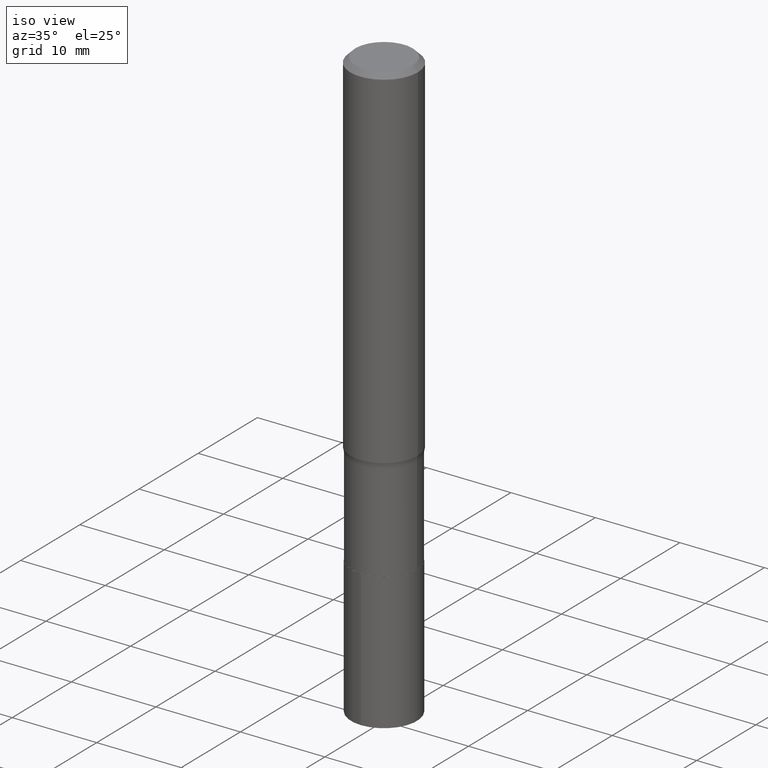
[diagram: clean part render]
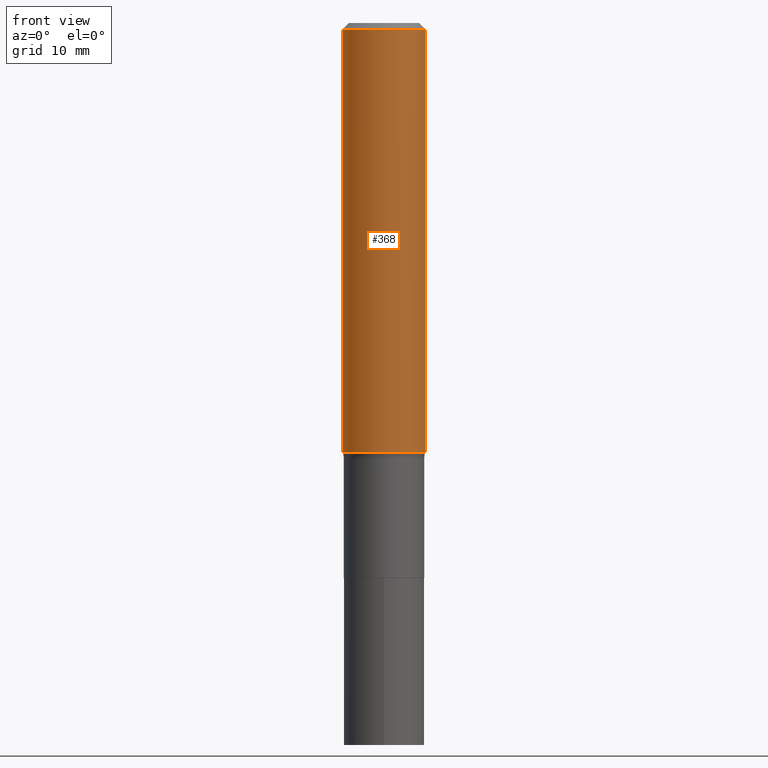
[diagram: tour spotlight — one face highlighted and labeled with its STEP entity id]
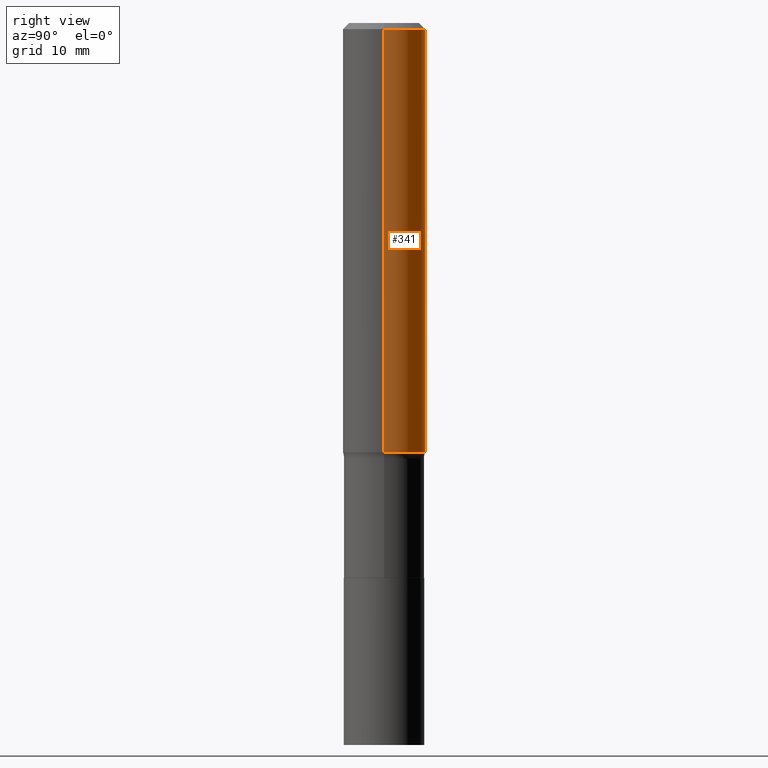
[diagram: tour spotlight — one face highlighted and labeled with its STEP entity id]
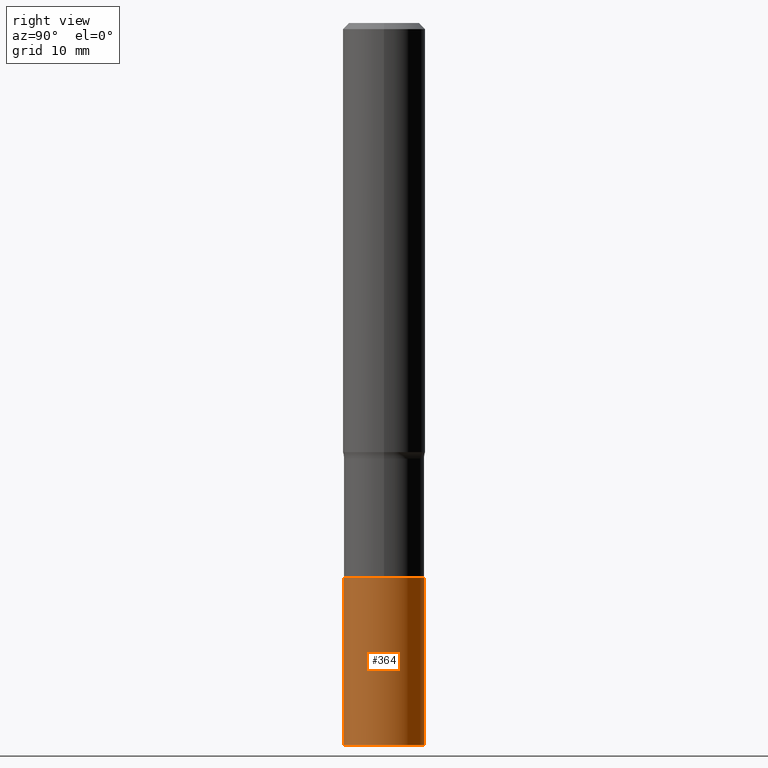
[diagram: tour spotlight — one face highlighted and labeled with its STEP entity id]
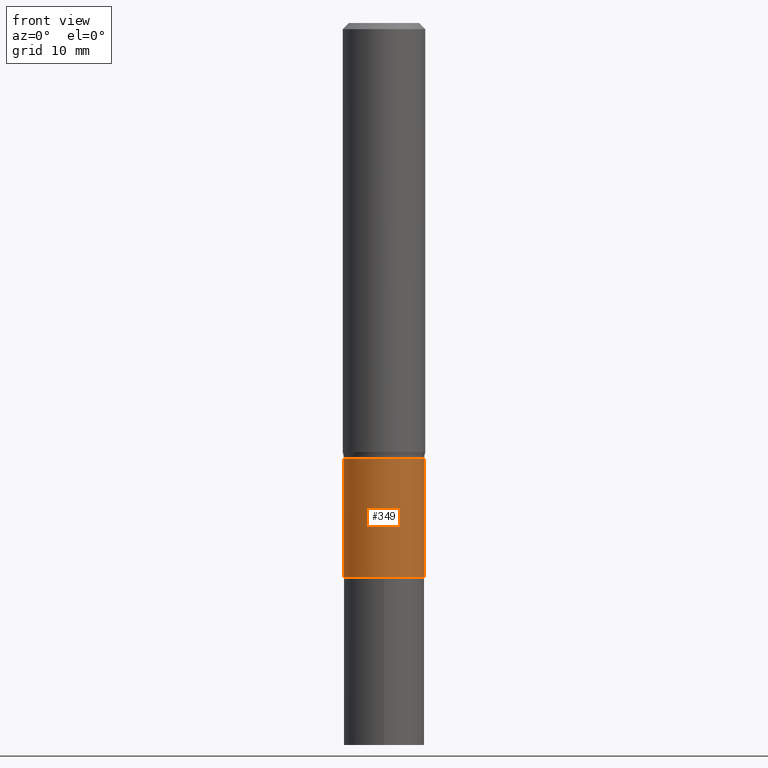
[diagram: tour spotlight — one face highlighted and labeled with its STEP entity id]
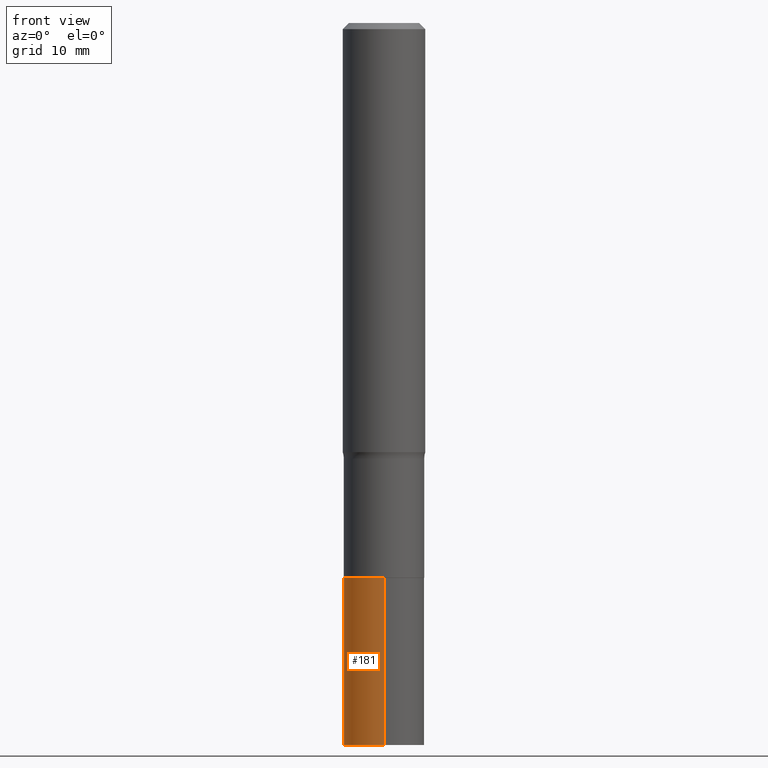
[diagram: tour spotlight — one face highlighted and labeled with its STEP entity id]
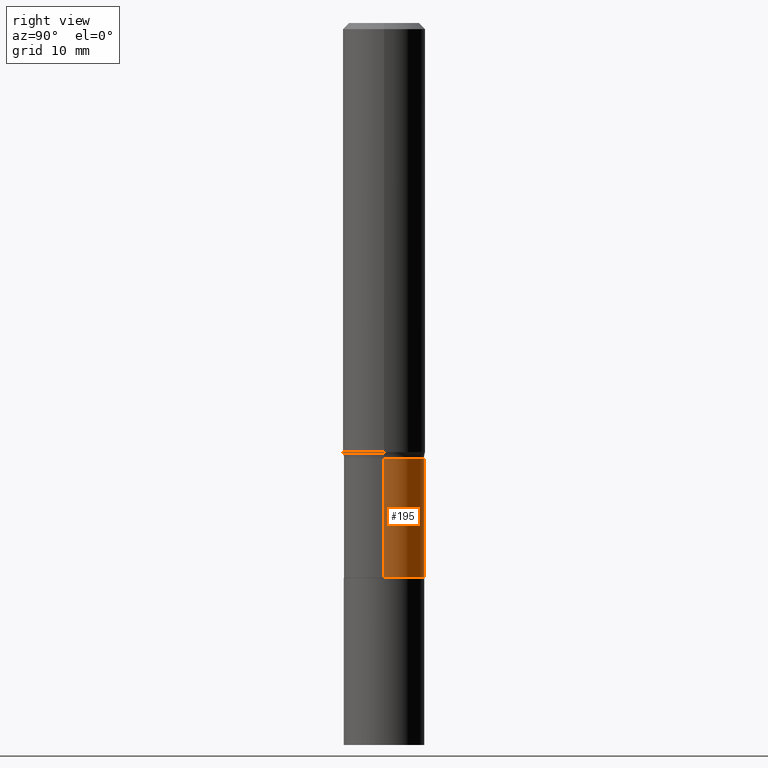
[diagram: tour spotlight — one face highlighted and labeled with its STEP entity id]
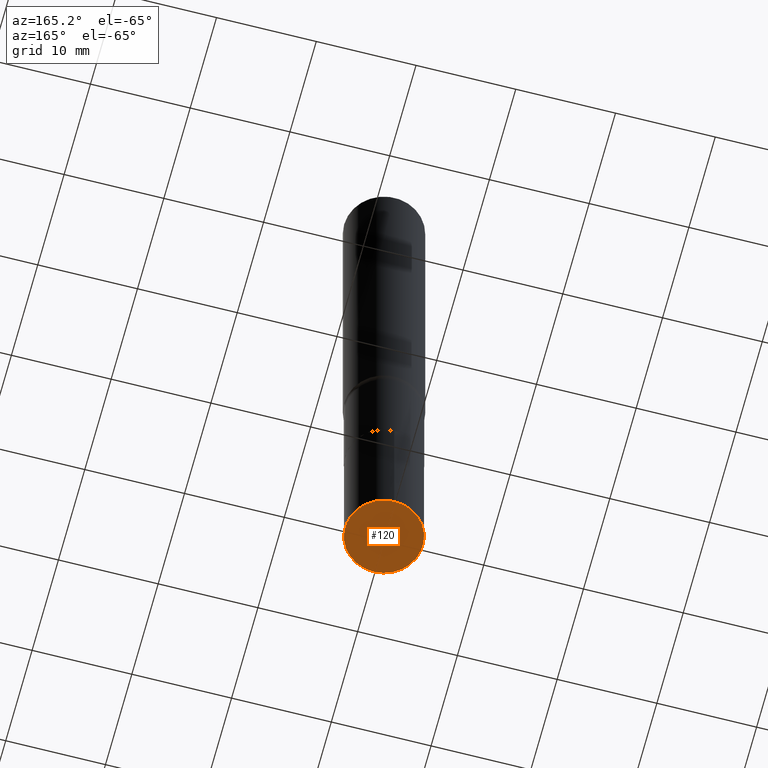
[diagram: tour spotlight — one face highlighted and labeled with its STEP entity id]
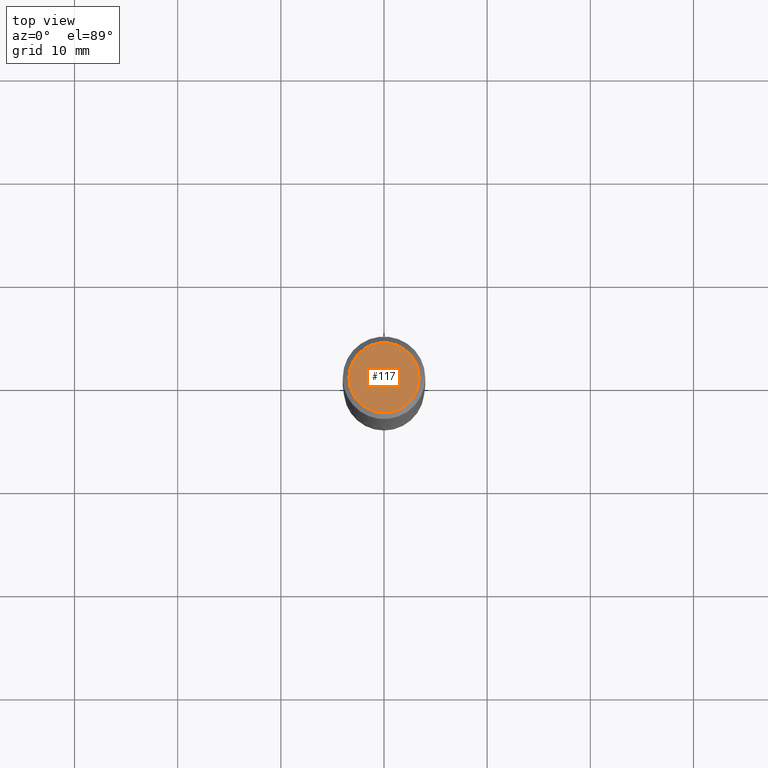
[diagram: tour spotlight — one face highlighted and labeled with its STEP entity id]
A machine part: a face-by-face anatomy tour. The part has 16 B-rep faces; the first image is the clean iso view, then the 8 largest visible faces are spotlighted one at a time (largest first), each with its STEP entity span.

Face 1 — front view, entity #368. In plain terms, the highlighted cylindrical surface (partial cylindrical patch) has radius 4.0005 mm, axis along (-0, 0, 1).
Definition (entity closure, byte-faithful):
#2 = DIRECTION ( 'NONE',  ( 1.000000000000000000, -6.982962677686265922E-15, 0.000000000000000000 ) ) ;
#15 = EDGE_CURVE ( 'NONE', #165, #241, #380, .T. ) ;
#20 = CARTESIAN_POINT ( 'NONE',  ( 0.1575000000000000011, -1.182302868365756679E-15, -0.02362500000000014588 ) ) ;
#28 = EDGE_CURVE ( 'NONE', #52, #271, #307, .T. ) ;
#35 = FACE_OUTER_BOUND ( 'NONE', #88, .T. ) ;
#39 = CARTESIAN_POINT ( 'NONE',  ( 5.777420054612421104E-31, -8.248624663016984002E-17, -0.02362500000000014588 ) ) ;
#40 = EDGE_CURVE ( 'NONE', #52, #165, #108, .T. ) ;
#52 = VERTEX_POINT ( 'NONE', #67 ) ;
#67 = CARTESIAN_POINT ( 'NONE',  ( -0.1575000000000001676, -4.599846118689354837E-15, -1.637972646133749377 ) ) ;
#69 = CARTESIAN_POINT ( 'NONE',  ( -0.1575000000000000844, 1.119104808822158392E-15, -7.747322767151481189E-30 ) ) ;
#76 = VECTOR ( 'NONE', #460, 39.37007874015748143 ) ;
#88 = EDGE_LOOP ( 'NONE', ( #135, #170, #386, #197 ) ) ;
#106 = DIRECTION ( 'NONE',  ( -2.445468806185136597E-29, 3.491481338843145583E-15, 1.000000000000000000 ) ) ;
#107 = CYLINDRICAL_SURFACE ( 'NONE', #204, 0.1575000000000000844 ) ;
#108 = LINE ( 'NONE', #69, #229 ) ;
#121 = CARTESIAN_POINT ( 'NONE',  ( -0.1575000000000000011, -1.781613778248682921E-15, -0.02362500000000014588 ) ) ;
#133 = CARTESIAN_POINT ( 'NONE',  ( 0.1575000000000001676, -6.818767549247101499E-15, -1.637972646133749377 ) ) ;
#135 = ORIENTED_EDGE ( 'NONE', *, *, #40, .F. ) ;
#165 = VERTEX_POINT ( 'NONE', #121 ) ;
#170 = ORIENTED_EDGE ( 'NONE', *, *, #28, .T. ) ;
#171 = AXIS2_PLACEMENT_3D ( 'NONE', #247, #214, #2 ) ;
#197 = ORIENTED_EDGE ( 'NONE', *, *, #15, .F. ) ;
#204 = AXIS2_PLACEMENT_3D ( 'NONE', #400, #284, #205 ) ;
#205 = DIRECTION ( 'NONE',  ( 1.000000000000000000, -6.982962677686267499E-15, 4.876176775795936353E-29 ) ) ;
#214 = DIRECTION ( 'NONE',  ( -2.445468806185136597E-29, 3.491481338843145583E-15, 1.000000000000000000 ) ) ;
#221 = AXIS2_PLACEMENT_3D ( 'NONE', #39, #106, #466 ) ;
#229 = VECTOR ( 'NONE', #257, 39.37007874015748143 ) ;
#241 = VERTEX_POINT ( 'NONE', #20 ) ;
#247 = CARTESIAN_POINT ( 'NONE',  ( 4.005611011504608919E-29, -5.718950927511513230E-15, -1.637972646133749377 ) ) ;
#257 = DIRECTION ( 'NONE',  ( -2.445468806185136877E-29, 3.491481338843145188E-15, 1.000000000000000000 ) ) ;
#271 = VERTEX_POINT ( 'NONE', #133 ) ;
#284 = DIRECTION ( 'NONE',  ( -2.445468806185136597E-29, 3.491481338843145583E-15, 1.000000000000000000 ) ) ;
#307 = CIRCLE ( 'NONE', #171, 0.1575000000000001954 ) ;
#331 = EDGE_CURVE ( 'NONE', #271, #241, #448, .T. ) ;
#368 = ADVANCED_FACE ( 'NONE', ( #35 ), #107, .T. ) ;
#380 = CIRCLE ( 'NONE', #221, 0.1575000000000000011 ) ;
#386 = ORIENTED_EDGE ( 'NONE', *, *, #331, .T. ) ;
#400 = CARTESIAN_POINT ( 'NONE',  ( 0.000000000000000000, 0.000000000000000000, 0.000000000000000000 ) ) ;
#448 = LINE ( 'NONE', #456, #76 ) ;
#456 = CARTESIAN_POINT ( 'NONE',  ( 0.1575000000000000844, -1.099816621735587677E-15, 7.679978421878603638E-30 ) ) ;
#460 = DIRECTION ( 'NONE',  ( -2.445468806185136877E-29, 3.491481338843145188E-15, 1.000000000000000000 ) ) ;
#466 = DIRECTION ( 'NONE',  ( 1.000000000000000000, -6.982962677686265922E-15, 0.000000000000000000 ) ) ;

Face 2 — right view, entity #341. In plain terms, the highlighted cylindrical surface (partial cylindrical patch) has radius 4.0005 mm, axis along (-0, 0, 1).
Definition (entity closure, byte-faithful):
#17 = CIRCLE ( 'NONE', #281, 0.1575000000000000011 ) ;
#20 = CARTESIAN_POINT ( 'NONE',  ( 0.1575000000000000011, -1.182302868365756679E-15, -0.02362500000000014588 ) ) ;
#29 = DIRECTION ( 'NONE',  ( -2.445468806185136597E-29, 3.491481338843145583E-15, 1.000000000000000000 ) ) ;
#40 = EDGE_CURVE ( 'NONE', #52, #165, #108, .T. ) ;
#41 = FACE_OUTER_BOUND ( 'NONE', #420, .T. ) ;
#50 = DIRECTION ( 'NONE',  ( 1.000000000000000000, -6.982962677686265922E-15, 0.000000000000000000 ) ) ;
#52 = VERTEX_POINT ( 'NONE', #67 ) ;
#58 = CARTESIAN_POINT ( 'NONE',  ( 0.000000000000000000, 0.000000000000000000, 0.000000000000000000 ) ) ;
#67 = CARTESIAN_POINT ( 'NONE',  ( -0.1575000000000001676, -4.599846118689354837E-15, -1.637972646133749377 ) ) ;
#69 = CARTESIAN_POINT ( 'NONE',  ( -0.1575000000000000844, 1.119104808822158392E-15, -7.747322767151481189E-30 ) ) ;
#76 = VECTOR ( 'NONE', #460, 39.37007874015748143 ) ;
#104 = ORIENTED_EDGE ( 'NONE', *, *, #329, .F. ) ;
#108 = LINE ( 'NONE', #69, #229 ) ;
#121 = CARTESIAN_POINT ( 'NONE',  ( -0.1575000000000000011, -1.781613778248682921E-15, -0.02362500000000014588 ) ) ;
#133 = CARTESIAN_POINT ( 'NONE',  ( 0.1575000000000001676, -6.818767549247101499E-15, -1.637972646133749377 ) ) ;
#156 = CIRCLE ( 'NONE', #390, 0.1575000000000001954 ) ;
#165 = VERTEX_POINT ( 'NONE', #121 ) ;
#189 = CARTESIAN_POINT ( 'NONE',  ( 5.777420054612421104E-31, -8.248624663016984002E-17, -0.02362500000000014588 ) ) ;
#206 = ORIENTED_EDGE ( 'NONE', *, *, #312, .T. ) ;
#229 = VECTOR ( 'NONE', #257, 39.37007874015748143 ) ;
#241 = VERTEX_POINT ( 'NONE', #20 ) ;
#243 = ORIENTED_EDGE ( 'NONE', *, *, #40, .T. ) ;
#257 = DIRECTION ( 'NONE',  ( -2.445468806185136877E-29, 3.491481338843145188E-15, 1.000000000000000000 ) ) ;
#271 = VERTEX_POINT ( 'NONE', #133 ) ;
#275 = CARTESIAN_POINT ( 'NONE',  ( 4.005611011504608919E-29, -5.718950927511513230E-15, -1.637972646133749377 ) ) ;
#281 = AXIS2_PLACEMENT_3D ( 'NONE', #189, #29, #310 ) ;
#310 = DIRECTION ( 'NONE',  ( 1.000000000000000000, -6.982962677686265922E-15, 0.000000000000000000 ) ) ;
#312 = EDGE_CURVE ( 'NONE', #271, #52, #156, .T. ) ;
#329 = EDGE_CURVE ( 'NONE', #241, #165, #17, .T. ) ;
#331 = EDGE_CURVE ( 'NONE', #271, #241, #448, .T. ) ;
#341 = ADVANCED_FACE ( 'NONE', ( #41 ), #388, .T. ) ;
#356 = DIRECTION ( 'NONE',  ( 1.000000000000000000, -6.982962677686267499E-15, 4.876176775795936353E-29 ) ) ;
#388 = CYLINDRICAL_SURFACE ( 'NONE', #464, 0.1575000000000000844 ) ;
#390 = AXIS2_PLACEMENT_3D ( 'NONE', #275, #415, #50 ) ;
#415 = DIRECTION ( 'NONE',  ( -2.445468806185136597E-29, 3.491481338843145583E-15, 1.000000000000000000 ) ) ;
#420 = EDGE_LOOP ( 'NONE', ( #206, #243, #104, #430 ) ) ;
#430 = ORIENTED_EDGE ( 'NONE', *, *, #331, .F. ) ;
#432 = DIRECTION ( 'NONE',  ( -2.445468806185136597E-29, 3.491481338843145583E-15, 1.000000000000000000 ) ) ;
#448 = LINE ( 'NONE', #456, #76 ) ;
#456 = CARTESIAN_POINT ( 'NONE',  ( 0.1575000000000000844, -1.099816621735587677E-15, 7.679978421878603638E-30 ) ) ;
#460 = DIRECTION ( 'NONE',  ( -2.445468806185136877E-29, 3.491481338843145188E-15, 1.000000000000000000 ) ) ;
#464 = AXIS2_PLACEMENT_3D ( 'NONE', #58, #432, #356 ) ;

Face 3 — right view, entity #364. In plain terms, the highlighted cylindrical surface (partial cylindrical patch) has radius 3.9002 mm, axis along (-0, 0, 1).
Definition (entity closure, byte-faithful):
#3 = AXIS2_PLACEMENT_3D ( 'NONE', #63, #354, #291 ) ;
#27 = ORIENTED_EDGE ( 'NONE', *, *, #65, .F. ) ;
#38 = FACE_OUTER_BOUND ( 'NONE', #427, .T. ) ;
#48 = LINE ( 'NONE', #164, #347 ) ;
#54 = DIRECTION ( 'NONE',  ( -2.445810877252838916E-29, 3.490991473604719317E-15, 1.000000000000000000 ) ) ;
#63 = CARTESIAN_POINT ( 'NONE',  ( 5.179258384619500626E-29, -7.394608327535897484E-15, -2.117899999999999672 ) ) ;
#65 = EDGE_CURVE ( 'NONE', #158, #280, #260, .T. ) ;
#105 = CARTESIAN_POINT ( 'NONE',  ( 5.179258384619500626E-29, -7.394608327535897484E-15, -2.117899999999999672 ) ) ;
#109 = CARTESIAN_POINT ( 'NONE',  ( -1.072233919158658699E-15, -0.1535500000000096232, -2.755900000000000016 ) ) ;
#122 = VECTOR ( 'NONE', #452, 39.37007874015748143 ) ;
#146 = AXIS2_PLACEMENT_3D ( 'NONE', #385, #272, #336 ) ;
#158 = VERTEX_POINT ( 'NONE', #293 ) ;
#162 = LINE ( 'NONE', #305, #122 ) ;
#164 = CARTESIAN_POINT ( 'NONE',  ( -1.072233919158674279E-15, -0.1535500000000073750, -2.117899999999999228 ) ) ;
#213 = EDGE_CURVE ( 'NONE', #378, #416, #288, .T. ) ;
#231 = CARTESIAN_POINT ( 'NONE',  ( 1.091038370759701227E-15, 0.1535499999999926091, -2.117900000000000560 ) ) ;
#251 = DIRECTION ( 'NONE',  ( -6.982962677686266711E-15, -1.000000000000000000, 3.558252026915354491E-15 ) ) ;
#258 = EDGE_CURVE ( 'NONE', #378, #158, #48, .T. ) ;
#260 = CIRCLE ( 'NONE', #3, 0.1535499999999999921 ) ;
#272 = DIRECTION ( 'NONE',  ( -2.445810877252838916E-29, 3.490991473604719712E-15, 1.000000000000000000 ) ) ;
#280 = VERTEX_POINT ( 'NONE', #231 ) ;
#288 = CIRCLE ( 'NONE', #146, 0.1535499999999999921 ) ;
#290 = CYLINDRICAL_SURFACE ( 'NONE', #328, 0.1535499999999999921 ) ;
#291 = DIRECTION ( 'NONE',  ( -6.982962677686266711E-15, -1.000000000000000000, 3.558252026915354491E-15 ) ) ;
#293 = CARTESIAN_POINT ( 'NONE',  ( -1.072233919158674279E-15, -0.1535500000000073750, -2.117899999999999228 ) ) ;
#302 = ORIENTED_EDGE ( 'NONE', *, *, #258, .F. ) ;
#305 = CARTESIAN_POINT ( 'NONE',  ( 1.091038370759685449E-15, 0.1535499999999926091, -2.117900000000000560 ) ) ;
#309 = EDGE_CURVE ( 'NONE', #416, #280, #162, .T. ) ;
#328 = AXIS2_PLACEMENT_3D ( 'NONE', #105, #392, #251 ) ;
#336 = DIRECTION ( 'NONE',  ( -6.982962677686266711E-15, -1.000000000000000000, 3.558252026915354491E-15 ) ) ;
#347 = VECTOR ( 'NONE', #54, 39.37007874015748143 ) ;
#351 = ORIENTED_EDGE ( 'NONE', *, *, #309, .T. ) ;
#354 = DIRECTION ( 'NONE',  ( -2.445810877252838916E-29, 3.490991473604719712E-15, 1.000000000000000000 ) ) ;
#364 = ADVANCED_FACE ( 'NONE', ( #38 ), #290, .T. ) ;
#378 = VERTEX_POINT ( 'NONE', #109 ) ;
#385 = CARTESIAN_POINT ( 'NONE',  ( 6.739685724306814341E-29, -9.621860887695710828E-15, -2.755900000000000460 ) ) ;
#392 = DIRECTION ( 'NONE',  ( -2.445810877252838916E-29, 3.490991473604719712E-15, 1.000000000000000000 ) ) ;
#416 = VERTEX_POINT ( 'NONE', #467 ) ;
#427 = EDGE_LOOP ( 'NONE', ( #455, #351, #27, #302 ) ) ;
#452 = DIRECTION ( 'NONE',  ( -2.445810877252838916E-29, 3.490991473604719317E-15, 1.000000000000000000 ) ) ;
#455 = ORIENTED_EDGE ( 'NONE', *, *, #213, .T. ) ;
#467 = CARTESIAN_POINT ( 'NONE',  ( 1.091038370759693141E-15, 0.1535499999999903609, -2.755900000000000905 ) ) ;

Face 4 — front view, entity #349. In plain terms, the highlighted cylindrical surface (partial cylindrical patch) has radius 3.9002 mm, axis along (-0, 0, 1).
Definition (entity closure, byte-faithful):
#1 = CARTESIAN_POINT ( 'NONE',  ( -0.1535499999999999365, -5.508210507787796111E-15, -1.662800000000000056 ) ) ;
#23 = VERTEX_POINT ( 'NONE', #352 ) ;
#33 = DIRECTION ( 'NONE',  ( 1.000000000000000000, -6.982962677686266711E-15, 4.876176775795935793E-29 ) ) ;
#51 = CIRCLE ( 'NONE', #440, 0.1535499999999999643 ) ;
#81 = VECTOR ( 'NONE', #93, 39.37007874015748143 ) ;
#87 = DIRECTION ( 'NONE',  ( -2.445468806185136877E-29, 3.491481338843145188E-15, 1.000000000000000000 ) ) ;
#93 = DIRECTION ( 'NONE',  ( -2.445468806185136877E-29, 3.491481338843145188E-15, 1.000000000000000000 ) ) ;
#113 = VERTEX_POINT ( 'NONE', #433 ) ;
#115 = EDGE_CURVE ( 'NONE', #113, #23, #51, .T. ) ;
#131 = AXIS2_PLACEMENT_3D ( 'NONE', #137, #353, #33 ) ;
#137 = CARTESIAN_POINT ( 'NONE',  ( 0.000000000000000000, 0.000000000000000000, 0.000000000000000000 ) ) ;
#188 = CARTESIAN_POINT ( 'NONE',  ( 0.1535499999999999365, -6.877869089387108762E-15, -1.662800000000000056 ) ) ;
#192 = VERTEX_POINT ( 'NONE', #188 ) ;
#225 = DIRECTION ( 'NONE',  ( 1.000000000000000000, -6.982962677686263555E-15, 0.000000000000000000 ) ) ;
#239 = LINE ( 'NONE', #422, #445 ) ;
#245 = CYLINDRICAL_SURFACE ( 'NONE', #131, 0.1535499999999999643 ) ;
#248 = DIRECTION ( 'NONE',  ( 1.000000000000000000, -6.982962677686265133E-15, 0.000000000000000000 ) ) ;
#252 = CARTESIAN_POINT ( 'NONE',  ( 5.178035650216407825E-29, -7.392862586866475192E-15, -2.117399999999999949 ) ) ;
#253 = FACE_OUTER_BOUND ( 'NONE', #339, .T. ) ;
#255 = EDGE_CURVE ( 'NONE', #113, #461, #450, .T. ) ;
#282 = DIRECTION ( 'NONE',  ( -2.445468806185136597E-29, 3.491481338843145583E-15, 1.000000000000000000 ) ) ;
#306 = ORIENTED_EDGE ( 'NONE', *, *, #320, .T. ) ;
#320 = EDGE_CURVE ( 'NONE', #23, #192, #239, .T. ) ;
#339 = EDGE_LOOP ( 'NONE', ( #414, #403, #306, #389 ) ) ;
#349 = ADVANCED_FACE ( 'NONE', ( #253 ), #245, .T. ) ;
#352 = CARTESIAN_POINT ( 'NONE',  ( 0.1535499999999999643, -8.465096506025201338E-15, -2.117399999999999949 ) ) ;
#353 = DIRECTION ( 'NONE',  ( -2.445468806185136597E-29, 3.491481338843145583E-15, 1.000000000000000000 ) ) ;
#381 = CIRCLE ( 'NONE', #391, 0.1535499999999999365 ) ;
#389 = ORIENTED_EDGE ( 'NONE', *, *, #421, .F. ) ;
#391 = AXIS2_PLACEMENT_3D ( 'NONE', #394, #282, #248 ) ;
#394 = CARTESIAN_POINT ( 'NONE',  ( 4.066325530924645497E-29, -5.805635170228382616E-15, -1.662800000000000056 ) ) ;
#403 = ORIENTED_EDGE ( 'NONE', *, *, #115, .T. ) ;
#414 = ORIENTED_EDGE ( 'NONE', *, *, #255, .F. ) ;
#418 = CARTESIAN_POINT ( 'NONE',  ( -0.1535499999999999643, 1.091038370759633582E-15, -7.553024831086406471E-30 ) ) ;
#421 = EDGE_CURVE ( 'NONE', #461, #192, #381, .T. ) ;
#422 = CARTESIAN_POINT ( 'NONE',  ( 0.1535499999999999643, -1.072233919158725949E-15, 7.487369439234657779E-30 ) ) ;
#433 = CARTESIAN_POINT ( 'NONE',  ( -0.1535499999999999921, -5.508210507787796111E-15, -2.117399999999999949 ) ) ;
#440 = AXIS2_PLACEMENT_3D ( 'NONE', #252, #443, #225 ) ;
#443 = DIRECTION ( 'NONE',  ( -2.445468806185136597E-29, 3.491481338843145583E-15, 1.000000000000000000 ) ) ;
#445 = VECTOR ( 'NONE', #87, 39.37007874015748143 ) ;
#450 = LINE ( 'NONE', #418, #81 ) ;
#461 = VERTEX_POINT ( 'NONE', #1 ) ;

Face 5 — front view, entity #181. In plain terms, the highlighted cylindrical surface (partial cylindrical patch) has radius 3.9002 mm, axis along (-0, 0, 1).
Definition (entity closure, byte-faithful):
#7 = CYLINDRICAL_SURFACE ( 'NONE', #428, 0.1535499999999999921 ) ;
#9 = DIRECTION ( 'NONE',  ( -2.445810877252838916E-29, 3.490991473604719712E-15, 1.000000000000000000 ) ) ;
#19 = CIRCLE ( 'NONE', #82, 0.1535499999999999921 ) ;
#42 = ORIENTED_EDGE ( 'NONE', *, *, #258, .T. ) ;
#47 = DIRECTION ( 'NONE',  ( -6.982962677686266711E-15, -1.000000000000000000, 3.558252026915354491E-15 ) ) ;
#48 = LINE ( 'NONE', #164, #347 ) ;
#54 = DIRECTION ( 'NONE',  ( -2.445810877252838916E-29, 3.490991473604719317E-15, 1.000000000000000000 ) ) ;
#82 = AXIS2_PLACEMENT_3D ( 'NONE', #172, #98, #397 ) ;
#98 = DIRECTION ( 'NONE',  ( -2.445810877252838916E-29, 3.490991473604719712E-15, 1.000000000000000000 ) ) ;
#109 = CARTESIAN_POINT ( 'NONE',  ( -1.072233919158658699E-15, -0.1535500000000096232, -2.755900000000000016 ) ) ;
#112 = AXIS2_PLACEMENT_3D ( 'NONE', #207, #215, #144 ) ;
#118 = CARTESIAN_POINT ( 'NONE',  ( 5.179258384619500626E-29, -7.394608327535897484E-15, -2.117899999999999672 ) ) ;
#122 = VECTOR ( 'NONE', #452, 39.37007874015748143 ) ;
#126 = ORIENTED_EDGE ( 'NONE', *, *, #309, .F. ) ;
#144 = DIRECTION ( 'NONE',  ( -6.982962677686266711E-15, -1.000000000000000000, 3.558252026915354491E-15 ) ) ;
#158 = VERTEX_POINT ( 'NONE', #293 ) ;
#162 = LINE ( 'NONE', #305, #122 ) ;
#164 = CARTESIAN_POINT ( 'NONE',  ( -1.072233919158674279E-15, -0.1535500000000073750, -2.117899999999999228 ) ) ;
#172 = CARTESIAN_POINT ( 'NONE',  ( 6.739685724306814341E-29, -9.621860887695710828E-15, -2.755900000000000460 ) ) ;
#174 = ORIENTED_EDGE ( 'NONE', *, *, #387, .T. ) ;
#177 = EDGE_LOOP ( 'NONE', ( #126, #174, #42, #304 ) ) ;
#181 = ADVANCED_FACE ( 'NONE', ( #330 ), #7, .T. ) ;
#207 = CARTESIAN_POINT ( 'NONE',  ( 5.179258384619500626E-29, -7.394608327535897484E-15, -2.117899999999999672 ) ) ;
#215 = DIRECTION ( 'NONE',  ( -2.445810877252838916E-29, 3.490991473604719712E-15, 1.000000000000000000 ) ) ;
#231 = CARTESIAN_POINT ( 'NONE',  ( 1.091038370759701227E-15, 0.1535499999999926091, -2.117900000000000560 ) ) ;
#258 = EDGE_CURVE ( 'NONE', #378, #158, #48, .T. ) ;
#280 = VERTEX_POINT ( 'NONE', #231 ) ;
#293 = CARTESIAN_POINT ( 'NONE',  ( -1.072233919158674279E-15, -0.1535500000000073750, -2.117899999999999228 ) ) ;
#301 = CIRCLE ( 'NONE', #112, 0.1535499999999999921 ) ;
#304 = ORIENTED_EDGE ( 'NONE', *, *, #463, .F. ) ;
#305 = CARTESIAN_POINT ( 'NONE',  ( 1.091038370759685449E-15, 0.1535499999999926091, -2.117900000000000560 ) ) ;
#309 = EDGE_CURVE ( 'NONE', #416, #280, #162, .T. ) ;
#330 = FACE_OUTER_BOUND ( 'NONE', #177, .T. ) ;
#347 = VECTOR ( 'NONE', #54, 39.37007874015748143 ) ;
#378 = VERTEX_POINT ( 'NONE', #109 ) ;
#387 = EDGE_CURVE ( 'NONE', #416, #378, #19, .T. ) ;
#397 = DIRECTION ( 'NONE',  ( -6.982962677686266711E-15, -1.000000000000000000, 3.558252026915354491E-15 ) ) ;
#416 = VERTEX_POINT ( 'NONE', #467 ) ;
#428 = AXIS2_PLACEMENT_3D ( 'NONE', #118, #9, #47 ) ;
#452 = DIRECTION ( 'NONE',  ( -2.445810877252838916E-29, 3.490991473604719317E-15, 1.000000000000000000 ) ) ;
#463 = EDGE_CURVE ( 'NONE', #280, #158, #301, .T. ) ;
#467 = CARTESIAN_POINT ( 'NONE',  ( 1.091038370759693141E-15, 0.1535499999999903609, -2.755900000000000905 ) ) ;

Face 6 — right view, entity #195. In plain terms, the highlighted cylindrical surface (partial cylindrical patch) has radius 3.9002 mm, axis along (-0, 0, 1).
Definition (entity closure, byte-faithful):
#1 = CARTESIAN_POINT ( 'NONE',  ( -0.1535499999999999365, -5.508210507787796111E-15, -1.662800000000000056 ) ) ;
#23 = VERTEX_POINT ( 'NONE', #352 ) ;
#55 = EDGE_CURVE ( 'NONE', #23, #113, #333, .T. ) ;
#59 = AXIS2_PLACEMENT_3D ( 'NONE', #196, #125, #270 ) ;
#81 = VECTOR ( 'NONE', #93, 39.37007874015748143 ) ;
#87 = DIRECTION ( 'NONE',  ( -2.445468806185136877E-29, 3.491481338843145188E-15, 1.000000000000000000 ) ) ;
#92 = CIRCLE ( 'NONE', #230, 0.1535499999999999365 ) ;
#93 = DIRECTION ( 'NONE',  ( -2.445468806185136877E-29, 3.491481338843145188E-15, 1.000000000000000000 ) ) ;
#94 = ORIENTED_EDGE ( 'NONE', *, *, #55, .T. ) ;
#99 = EDGE_LOOP ( 'NONE', ( #94, #311, #200, #344 ) ) ;
#113 = VERTEX_POINT ( 'NONE', #433 ) ;
#125 = DIRECTION ( 'NONE',  ( -2.445468806185136597E-29, 3.491481338843145583E-15, 1.000000000000000000 ) ) ;
#176 = CARTESIAN_POINT ( 'NONE',  ( 4.066325530924645497E-29, -5.805635170228382616E-15, -1.662800000000000056 ) ) ;
#188 = CARTESIAN_POINT ( 'NONE',  ( 0.1535499999999999365, -6.877869089387108762E-15, -1.662800000000000056 ) ) ;
#192 = VERTEX_POINT ( 'NONE', #188 ) ;
#195 = ADVANCED_FACE ( 'NONE', ( #413 ), #337, .T. ) ;
#196 = CARTESIAN_POINT ( 'NONE',  ( 0.000000000000000000, 0.000000000000000000, 0.000000000000000000 ) ) ;
#200 = ORIENTED_EDGE ( 'NONE', *, *, #396, .F. ) ;
#211 = DIRECTION ( 'NONE',  ( 1.000000000000000000, -6.982962677686265133E-15, 0.000000000000000000 ) ) ;
#230 = AXIS2_PLACEMENT_3D ( 'NONE', #176, #242, #211 ) ;
#239 = LINE ( 'NONE', #422, #445 ) ;
#242 = DIRECTION ( 'NONE',  ( -2.445468806185136597E-29, 3.491481338843145583E-15, 1.000000000000000000 ) ) ;
#255 = EDGE_CURVE ( 'NONE', #113, #461, #450, .T. ) ;
#270 = DIRECTION ( 'NONE',  ( 1.000000000000000000, -6.982962677686266711E-15, 4.876176775795935793E-29 ) ) ;
#287 = DIRECTION ( 'NONE',  ( 1.000000000000000000, -6.982962677686263555E-15, 0.000000000000000000 ) ) ;
#311 = ORIENTED_EDGE ( 'NONE', *, *, #255, .T. ) ;
#320 = EDGE_CURVE ( 'NONE', #23, #192, #239, .T. ) ;
#333 = CIRCLE ( 'NONE', #372, 0.1535499999999999643 ) ;
#337 = CYLINDRICAL_SURFACE ( 'NONE', #59, 0.1535499999999999643 ) ;
#344 = ORIENTED_EDGE ( 'NONE', *, *, #320, .F. ) ;
#352 = CARTESIAN_POINT ( 'NONE',  ( 0.1535499999999999643, -8.465096506025201338E-15, -2.117399999999999949 ) ) ;
#357 = DIRECTION ( 'NONE',  ( -2.445468806185136597E-29, 3.491481338843145583E-15, 1.000000000000000000 ) ) ;
#372 = AXIS2_PLACEMENT_3D ( 'NONE', #395, #357, #287 ) ;
#395 = CARTESIAN_POINT ( 'NONE',  ( 5.178035650216407825E-29, -7.392862586866475192E-15, -2.117399999999999949 ) ) ;
#396 = EDGE_CURVE ( 'NONE', #192, #461, #92, .T. ) ;
#413 = FACE_OUTER_BOUND ( 'NONE', #99, .T. ) ;
#418 = CARTESIAN_POINT ( 'NONE',  ( -0.1535499999999999643, 1.091038370759633582E-15, -7.553024831086406471E-30 ) ) ;
#422 = CARTESIAN_POINT ( 'NONE',  ( 0.1535499999999999643, -1.072233919158725949E-15, 7.487369439234657779E-30 ) ) ;
#433 = CARTESIAN_POINT ( 'NONE',  ( -0.1535499999999999921, -5.508210507787796111E-15, -2.117399999999999949 ) ) ;
#445 = VECTOR ( 'NONE', #87, 39.37007874015748143 ) ;
#450 = LINE ( 'NONE', #418, #81 ) ;
#461 = VERTEX_POINT ( 'NONE', #1 ) ;

Face 7 — auxiliary view, entity #120. In plain terms, the highlighted planar face has unit normal (-0, 0, 1).
Definition (entity closure, byte-faithful):
#19 = CIRCLE ( 'NONE', #82, 0.1535499999999999921 ) ;
#31 = EDGE_LOOP ( 'NONE', ( #273, #316 ) ) ;
#80 = CARTESIAN_POINT ( 'NONE',  ( -1.081561332660571288E-30, -1.942836018269385033E-14, -2.755900000000000016 ) ) ;
#82 = AXIS2_PLACEMENT_3D ( 'NONE', #172, #98, #397 ) ;
#98 = DIRECTION ( 'NONE',  ( -2.445810877252838916E-29, 3.490991473604719712E-15, 1.000000000000000000 ) ) ;
#109 = CARTESIAN_POINT ( 'NONE',  ( -1.072233919158658699E-15, -0.1535500000000096232, -2.755900000000000016 ) ) ;
#120 = ADVANCED_FACE ( 'NONE', ( #369 ), #148, .F. ) ;
#146 = AXIS2_PLACEMENT_3D ( 'NONE', #385, #272, #336 ) ;
#148 = PLANE ( 'NONE',  #268 ) ;
#172 = CARTESIAN_POINT ( 'NONE',  ( 6.739685724306814341E-29, -9.621860887695710828E-15, -2.755900000000000460 ) ) ;
#184 = DIRECTION ( 'NONE',  ( -6.982962677686265922E-15, -1.000000000000000000, 3.490991473604719317E-15 ) ) ;
#213 = EDGE_CURVE ( 'NONE', #378, #416, #288, .T. ) ;
#263 = DIRECTION ( 'NONE',  ( -2.445810877252838916E-29, 3.490991473604719317E-15, 1.000000000000000000 ) ) ;
#268 = AXIS2_PLACEMENT_3D ( 'NONE', #80, #263, #184 ) ;
#272 = DIRECTION ( 'NONE',  ( -2.445810877252838916E-29, 3.490991473604719712E-15, 1.000000000000000000 ) ) ;
#273 = ORIENTED_EDGE ( 'NONE', *, *, #213, .F. ) ;
#288 = CIRCLE ( 'NONE', #146, 0.1535499999999999921 ) ;
#316 = ORIENTED_EDGE ( 'NONE', *, *, #387, .F. ) ;
#336 = DIRECTION ( 'NONE',  ( -6.982962677686266711E-15, -1.000000000000000000, 3.558252026915354491E-15 ) ) ;
#369 = FACE_OUTER_BOUND ( 'NONE', #31, .T. ) ;
#378 = VERTEX_POINT ( 'NONE', #109 ) ;
#385 = CARTESIAN_POINT ( 'NONE',  ( 6.739685724306814341E-29, -9.621860887695710828E-15, -2.755900000000000460 ) ) ;
#387 = EDGE_CURVE ( 'NONE', #416, #378, #19, .T. ) ;
#397 = DIRECTION ( 'NONE',  ( -6.982962677686266711E-15, -1.000000000000000000, 3.558252026915354491E-15 ) ) ;
#416 = VERTEX_POINT ( 'NONE', #467 ) ;
#467 = CARTESIAN_POINT ( 'NONE',  ( 1.091038370759693141E-15, 0.1535499999999903609, -2.755900000000000905 ) ) ;

Face 8 — top view, entity #117. In plain terms, the highlighted planar face has unit normal (0, -0, -1).
Definition (entity closure, byte-faithful):
#6 = PLANE ( 'NONE',  #300 ) ;
#24 = EDGE_CURVE ( 'NONE', #60, #169, #453, .T. ) ;
#30 = CIRCLE ( 'NONE', #334, 0.1338749999999999940 ) ;
#60 = VERTEX_POINT ( 'NONE', #435 ) ;
#71 = CARTESIAN_POINT ( 'NONE',  ( -1.002970424325035327E-46, 1.431975951230899223E-32, 4.101342130344493665E-18 ) ) ;
#100 = AXIS2_PLACEMENT_3D ( 'NONE', #249, #322, #314 ) ;
#117 = ADVANCED_FACE ( 'NONE', ( #227 ), #6, .F. ) ;
#149 = DIRECTION ( 'NONE',  ( 2.438088387897960049E-29, -3.491481338843145188E-15, -1.000000000000000000 ) ) ;
#168 = DIRECTION ( 'NONE',  ( -2.445468806185136597E-29, 3.491481338843145583E-15, 1.000000000000000000 ) ) ;
#169 = VERTEX_POINT ( 'NONE', #266 ) ;
#178 = DIRECTION ( 'NONE',  ( 1.000000000000000000, -6.982962677686266711E-15, 4.876170806578254279E-29 ) ) ;
#227 = FACE_OUTER_BOUND ( 'NONE', #451, .T. ) ;
#249 = CARTESIAN_POINT ( 'NONE',  ( -1.002970424325035327E-46, 1.431975951230899223E-32, 4.101342130344493665E-18 ) ) ;
#266 = CARTESIAN_POINT ( 'NONE',  ( -0.1338749999999999940, 9.760872517903331886E-16, 4.101342130337811459E-18 ) ) ;
#269 = ORIENTED_EDGE ( 'NONE', *, *, #379, .T. ) ;
#297 = CARTESIAN_POINT ( 'NONE',  ( -5.014852121625176635E-47, 7.159879756154496113E-33, 2.050671065172246833E-18 ) ) ;
#300 = AXIS2_PLACEMENT_3D ( 'NONE', #297, #149, #444 ) ;
#314 = DIRECTION ( 'NONE',  ( 1.000000000000000000, -6.982962677686266711E-15, 4.876170806578254279E-29 ) ) ;
#322 = DIRECTION ( 'NONE',  ( -2.445468806185136597E-29, 3.491481338843145583E-15, 1.000000000000000000 ) ) ;
#334 = AXIS2_PLACEMENT_3D ( 'NONE', #71, #168, #178 ) ;
#379 = EDGE_CURVE ( 'NONE', #169, #60, #30, .T. ) ;
#435 = CARTESIAN_POINT ( 'NONE',  ( 0.1338749999999999940, -1.040731925365424925E-15, 4.101342130351401591E-18 ) ) ;
#444 = DIRECTION ( 'NONE',  ( -1.000000000000000000, 6.982962677686265922E-15, -4.876176775795935793E-29 ) ) ;
#449 = ORIENTED_EDGE ( 'NONE', *, *, #24, .T. ) ;
#451 = EDGE_LOOP ( 'NONE', ( #269, #449 ) ) ;
#453 = CIRCLE ( 'NONE', #100, 0.1338749999999999940 ) ;